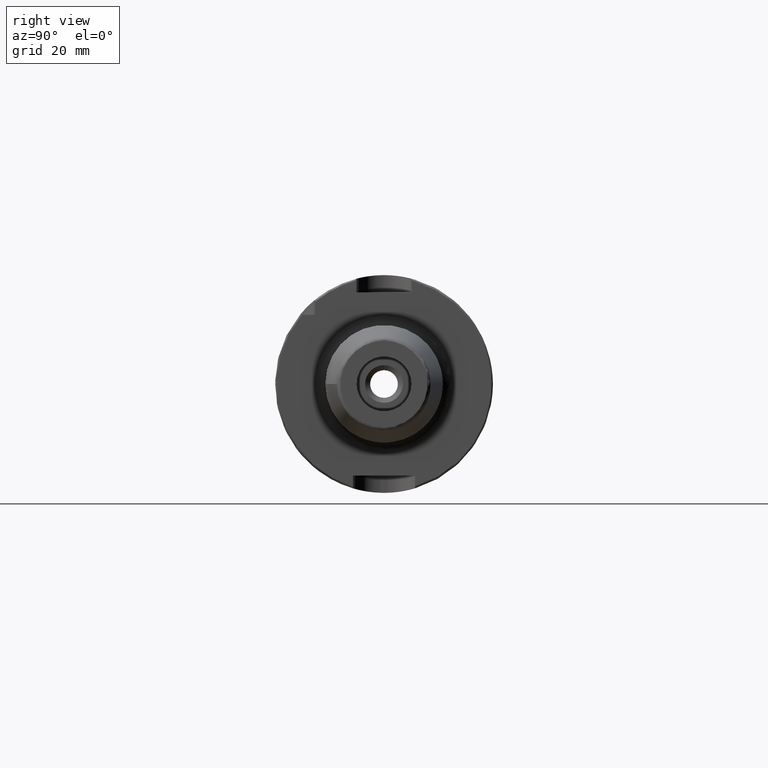
[diagram: clean part render]
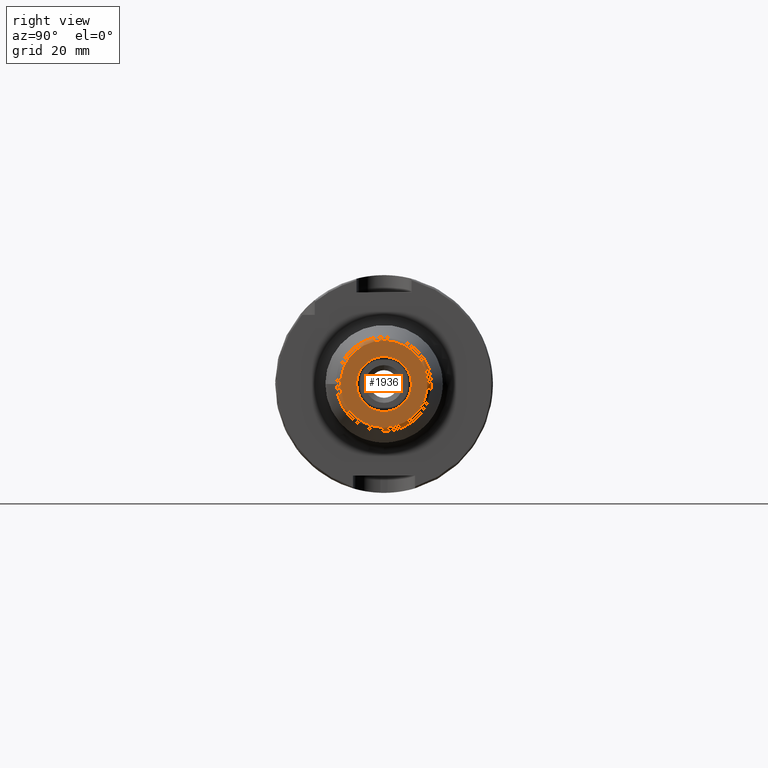
[diagram: same view with one face highlighted and labeled with its STEP entity id]
A machine part, right view. The second image highlights one B-rep face of the part: STEP entity #1936.
In plain terms, the highlighted planar face has unit normal (1, 0, 0).
Its self-contained STEP definition (entity closure, byte-faithful):
#97=FACE_BOUND('',#328,.T.);
#108=PLANE('',#2084);
#211=FACE_OUTER_BOUND('',#327,.T.);
#327=EDGE_LOOP('',(#1316));
#328=EDGE_LOOP('',(#1317));
#667=CIRCLE('',#2080,12.5756095083418);
#671=CIRCLE('',#2085,7.9375);
#791=VERTEX_POINT('',#2935);
#794=VERTEX_POINT('',#2943);
#995=EDGE_CURVE('',#791,#791,#667,.T.);
#999=EDGE_CURVE('',#794,#794,#671,.T.);
#1316=ORIENTED_EDGE('',*,*,#995,.F.);
#1317=ORIENTED_EDGE('',*,*,#999,.F.);
#1936=ADVANCED_FACE('',(#211,#97),#108,.T.);
#2080=AXIS2_PLACEMENT_3D('',#2936,#2340,#2341);
#2084=AXIS2_PLACEMENT_3D('',#2942,#2348,#2349);
#2085=AXIS2_PLACEMENT_3D('',#2944,#2350,#2351);
#2340=DIRECTION('center_axis',(-1.,0.,0.));
#2341=DIRECTION('ref_axis',(0.,-1.,1.83697019872103E-16));
#2348=DIRECTION('center_axis',(1.,0.,0.));
#2349=DIRECTION('ref_axis',(0.,0.,-1.));
#2350=DIRECTION('center_axis',(1.,0.,0.));
#2351=DIRECTION('ref_axis',(0.,0.,-1.));
#2935=CARTESIAN_POINT('',(160.,-1.54006799317178E-15,12.5756095083418));
#2936=CARTESIAN_POINT('Origin',(160.,0.,0.));
#2942=CARTESIAN_POINT('Origin',(160.,7.9375,0.));
#2943=CARTESIAN_POINT('',(160.,-7.9375,-9.72063396823212E-16));
#2944=CARTESIAN_POINT('Origin',(160.,0.,0.));